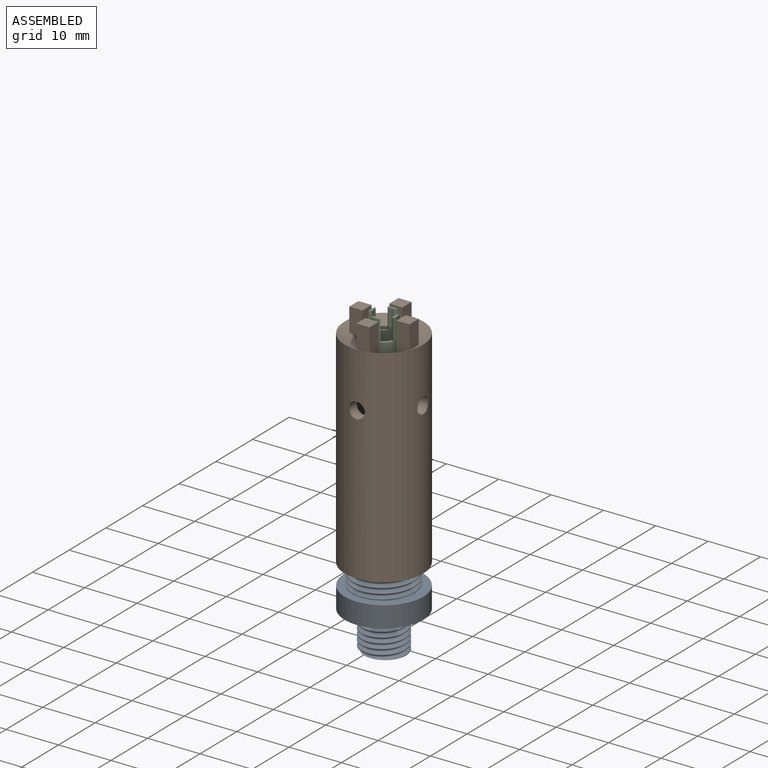
[diagram: assembled view]
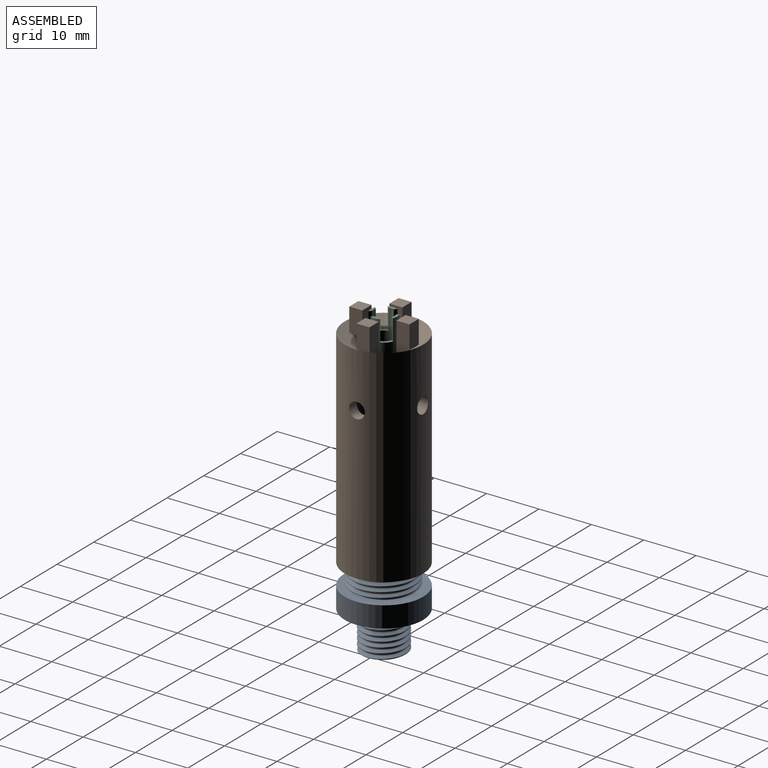
[diagram: assembled view, second angle]
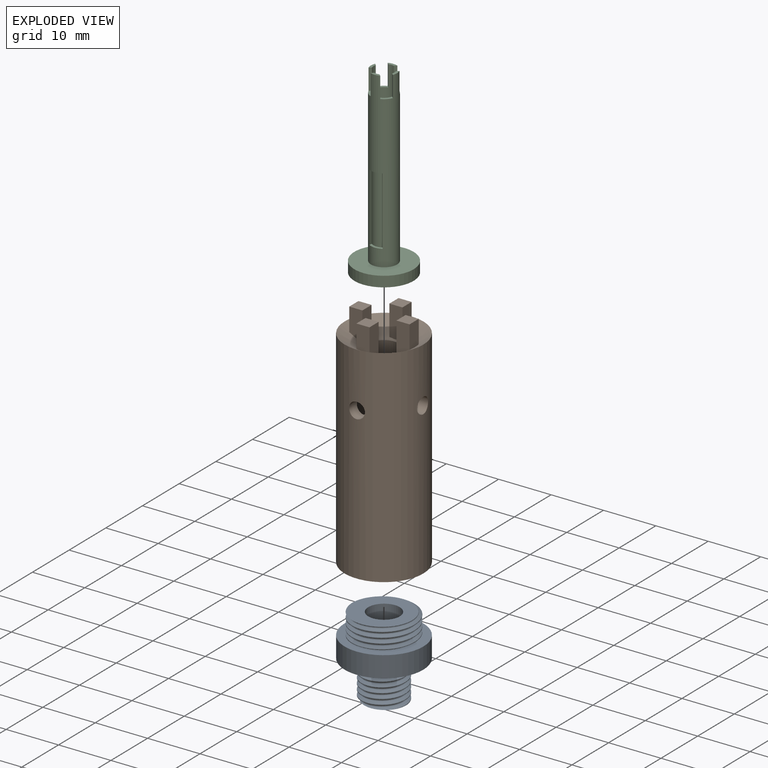
[diagram: exploded view]
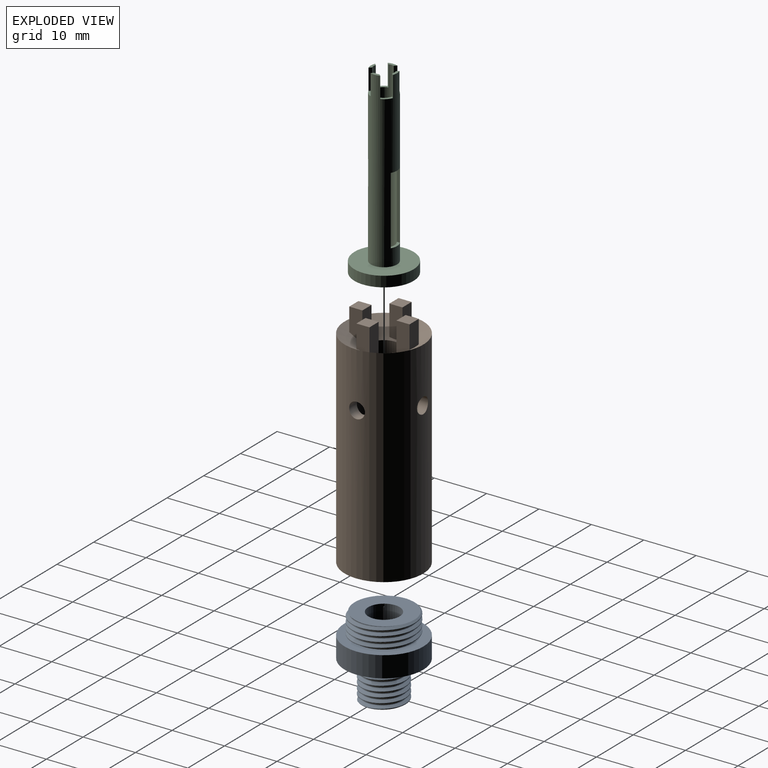
[diagram: exploded view, second angle]
ASSEMBLY  parts=3 mates=3
PART A: 14 faces, bbox 15.3x15.3x16.1 mm
  f0: cylinder r=6mm len=12mm, axis (0,0,-1), area 21.5mm2, adj f1,f3,f4,f5
  f1: plane 11.7x11.66mm, normal (0,0,1), area 73.4mm2, adj f0,f2,f3,f4,f8
  f2: bspline ~12.61x10.92mm, area 38.2mm2, adj f1,f3,f4,f5
  f3: bspline ~13.86x12mm, area 90mm2, adj f0,f1,f2,f5
  f4: bspline ~13.86x12mm, area 90mm2, adj f0,f1,f2,f5
  f5: plane 15.3x15.3mm, normal (0,0,1), area 75mm2, adj f0,f2,f3,f4,f6
  f6: cylinder r=7.5mm len=15mm, axis (0,0,1), area 188.5mm2, adj f5,f7
  f7: plane 15.28x15.28mm, normal (0,0,-1), area 127.9mm2, adj f6,f10,f11,f12,f13
  f8: cylinder r=3mm len=15mm, axis (0,0,1), area 282.7mm2, adj f1,f9
  f9: plane 8.2x8.16mm, normal (0,0,-1), area 20.5mm2, adj f8,f10,f11,f12,f13
  f10: cylinder r=4.25mm len=8.5mm, axis (0,0,1), area 13.1mm2, adj f7,f9,f12,f13
  f11: bspline ~8.57x7.75mm, area 45.3mm2, adj f7,f9,f12,f13
  f12: bspline ~9.82x8.5mm, area 109.3mm2, adj f7,f9,f10,f11
  f13: bspline ~9.82x8.5mm, area 109.4mm2, adj f7,f9,f10,f11
PART B: 40 faces, bbox 15.3x15.3x43.7 mm
  f0: plane 6.07x6.07mm, normal (0,0,1), area 5.1mm2, adj f4,f19
  f1: cylinder r=7.5mm len=39.5mm, axis (0,0,-1), area 1832.9mm2, adj f10,f15,f16,f17,f18,f19
  f2: cylinder r=5.5mm len=17mm, axis (0,0,-1), area 558.9mm2, adj f3,f5,f15,f16,f17,f18
  f3: plane 11x11mm, normal (0,0,-1), area 71.3mm2, adj f2,f4
  f4: cylinder r=2.75mm len=5.5mm, axis (0,0,1), area 51.8mm2, adj f0,f3
  f5: plane 11x11mm, normal (0,0,1), area 71.3mm2, adj f2,f9
  f6: cylinder r=7mm len=14mm, axis (0,0,-1), area 483.8mm2, adj f7,f8
  f7: plane 14x14mm, normal (0,0,-1), area 130.2mm2, adj f6,f9
  f8: plane 14.32x14.32mm, normal (0,0,1), area 41.1mm2, adj f6,f11,f12,f13,f14
  f9: cylinder r=2.75mm len=5.5mm, axis (0,0,1), area 34.6mm2, adj f5,f7
  f10: plane 15.32x15.32mm, normal (0,0,-1), area 63.9mm2, adj f1,f11,f12,f13,f14
  f11: bspline ~14.53x12.58mm, area 94.7mm2, adj f8,f10,f13,f14
  f12: bspline ~14.53x12.58mm, area 94.6mm2, adj f8,f10,f13,f14
  f13: bspline ~14.63x12.67mm, area 23mm2, adj f8,f10,f11,f12
  f14: cylinder r=5.75mm len=11.5mm, axis (0,0,1), area 36.5mm2, adj f8,f10,f11,f12
  f15: cylinder r=1.5mm len=3mm, axis (0,-1,0), area 18.8mm2, adj f1,f2
  f16: cylinder r=1.5mm len=3mm, axis (0,-1,0), area 18.8mm2, adj f1,f2
  f17: cylinder r=1.5mm len=3mm, axis (1,0,0), area 18.8mm2, adj f1,f2
  f18: cylinder r=1.5mm len=3mm, axis (1,0,0), area 18.8mm2, adj f1,f2
  f19: cone r=7.5mm half-angle=60.8deg, axis (0,0,1), area 139.4mm2, adj f0,f1,f21,f22,f23,f24,f26,f27
  f20: plane 2.5x2.5mm, normal (0,0,1), area 6.2mm2, adj f21,f22,f23,f24
  f21: plane 5.94x2.69mm, normal (1,0,0), area 12.7mm2, adj f19,f20,f22,f24
  f22: plane 5.88x2.5mm, normal (0,-1,0), area 14.6mm2, adj f19,f20,f21,f23
  f23: plane 5.94x2.69mm, normal (-1,0,0), area 12.7mm2, adj f19,f20,f22,f24
  f24: plane 4.48x2.51mm, normal (0,1,0), area 11.1mm2, adj f19,f20,f21,f23
  f25: plane 2.5x2.5mm, normal (0,0,1), area 6.2mm2, adj f26,f27,f28,f29
  f26: plane 5.88x2.5mm, normal (1,0,0), area 14.6mm2, adj f19,f25,f27,f29
  f27: plane 5.94x2.69mm, normal (0,-1,0), area 12.7mm2, adj f19,f25,f26,f28
  f28: plane 4.48x2.51mm, normal (-1,0,0), area 11.1mm2, adj f19,f25,f27,f29
  f29: plane 5.94x2.69mm, normal (0,1,0), area 12.7mm2, adj f19,f25,f26,f28
  f30: plane 2.5x2.5mm, normal (0,0,1), area 6.2mm2, adj f31,f32,f33,f34
  f31: plane 4.56x2.58mm, normal (1,0,0), area 11.1mm2, adj f19,f30,f32,f34
  f32: plane 5.94x2.69mm, normal (0,-1,0), area 12.7mm2, adj f19,f30,f31,f33
  f33: plane 6.02x2.64mm, normal (-1,0,0), area 14.6mm2, adj f19,f30,f32,f34
  f34: plane 5.94x2.69mm, normal (0,1,0), area 12.7mm2, adj f19,f30,f31,f33
  f35: plane 2.5x2.5mm, normal (0,0,1), area 6.2mm2, adj f36,f37,f38,f39
  f36: plane 5.94x2.69mm, normal (1,0,0), area 12.7mm2, adj f19,f35,f37,f39
  f37: plane 4.48x2.51mm, normal (0,-1,0), area 11.1mm2, adj f19,f35,f36,f38
  f38: plane 5.94x2.69mm, normal (-1,0,0), area 12.7mm2, adj f19,f35,f37,f39
  f39: plane 5.88x2.5mm, normal (0,1,0), area 14.6mm2, adj f19,f35,f36,f38
PART C: 32 faces, bbox 11.3x11.3x35 mm
  f0: cylinder r=2.5mm len=33mm, axis (0,0,1), area 417.4mm2, adj f2,f3,f4,f5,f7,f10,f11,f12
  f1: cylinder r=2mm len=33mm, axis (0,0,1), area 311mm2, adj f2,f3,f4,f5,f9,f10,f11,f12
  f2: plane 1.83x0.57mm, normal (0,0,1), area 0.7mm2, adj f0,f1,f20,f28
  f3: plane 1.83x0.57mm, normal (0,0,1), area 0.7mm2, adj f0,f1,f22,f30
  f4: plane 1.83x0.57mm, normal (0,0,1), area 0.7mm2, adj f0,f1,f25,f26
  f5: plane 1.83x0.57mm, normal (0,0,1), area 0.7mm2, adj f0,f1,f24,f31
  f6: cylinder r=5.65mm len=11.3mm, axis (0,0,-1), area 71mm2, adj f7,f8
  f7: plane 11.3x11.3mm, normal (0,0,1), area 80.7mm2, adj f0,f6
  f8: plane 11.3x11.3mm, normal (0,0,-1), area 36.7mm2, adj f6,f18
  f9: plane 4x4mm, normal (0,0,1), area 12.6mm2, adj f1
  f10: plane 13x0.6mm, normal (0,-1,0), area 7.8mm2, adj f0,f1,f11,f13
  f11: plane 2.5x0.94mm, normal (0,0,1), area 1.3mm2, adj f0,f1,f10,f12
  f12: plane 13x0.6mm, normal (0,1,0), area 7.8mm2, adj f0,f1,f11,f13
  f13: plane 2.5x0.94mm, normal (0,0,-1), area 1.3mm2, adj f0,f1,f10,f12
  f14: plane 2.5x0.94mm, normal (0,0,-1), area 1.3mm2, adj f0,f1,f15,f17
  f15: plane 13x0.6mm, normal (0,1,0), area 7.8mm2, adj f0,f1,f14,f16
  f16: plane 2.5x0.94mm, normal (0,0,1), area 1.3mm2, adj f0,f1,f15,f17
  f17: plane 13x0.6mm, normal (0,-1,0), area 7.8mm2, adj f0,f1,f14,f16
  f18: cylinder r=4.5mm len=9mm, axis (0,0,-1), area 42.4mm2, adj f8,f19
  f19: plane 9x9mm, normal (0,0,-1), area 63.6mm2, adj f18
  f20: plane 4x0.4mm, normal (0.71,0.71,0), area 2.2mm2, adj f0,f1,f2,f21
  f21: plane 1.81x1.81mm, normal (0,0,1), area 1mm2, adj f0,f1,f20,f22
  f22: plane 4x0.4mm, normal (-0.71,-0.71,0), area 2.2mm2, adj f0,f1,f3,f21
  f23: plane 1.81x1.81mm, normal (0,0,1), area 1mm2, adj f0,f1,f24,f25
  f24: plane 4x0.4mm, normal (-0.71,-0.71,0), area 2.2mm2, adj f0,f1,f5,f23
  f25: plane 4x0.4mm, normal (0.71,0.71,0), area 2.2mm2, adj f0,f1,f4,f23
  f26: plane 4x0.4mm, normal (-0.71,0.71,0), area 2.2mm2, adj f0,f1,f4,f27
  f27: plane 1.81x1.81mm, normal (0,0,1), area 1mm2, adj f0,f1,f26,f28
  f28: plane 4x0.4mm, normal (0.71,-0.71,0), area 2.2mm2, adj f0,f1,f2,f27
  f29: plane 1.81x1.81mm, normal (0,0,1), area 1mm2, adj f0,f1,f30,f31
  f30: plane 4x0.4mm, normal (0.71,-0.71,0), area 2.2mm2, adj f0,f1,f3,f29
  f31: plane 4x0.4mm, normal (-0.71,0.71,0), area 2.2mm2, adj f0,f1,f5,f29
PLACE A t=(-6.97,1.57,2.43)mm
PLACE B rot(axis=(0,0,1),180deg) t=(-6.97,1.57,6.93)mm
PLACE C rot(axis=(0,0,1),90deg) t=(-6.97,1.57,2.93)mm
MATE slider C.f18 <-> B.f6  axis (0,0,-1) through (-6.97,1.57,16.43)mm
MATE cylindrical A.f8 <-> B.f6  axis (0,0,1) through (-6.97,1.57,6.93)mm
MATE revolute A.f8 <-> B.f1  axis (0,0,1) through (-6.97,1.57,6.93)mm
